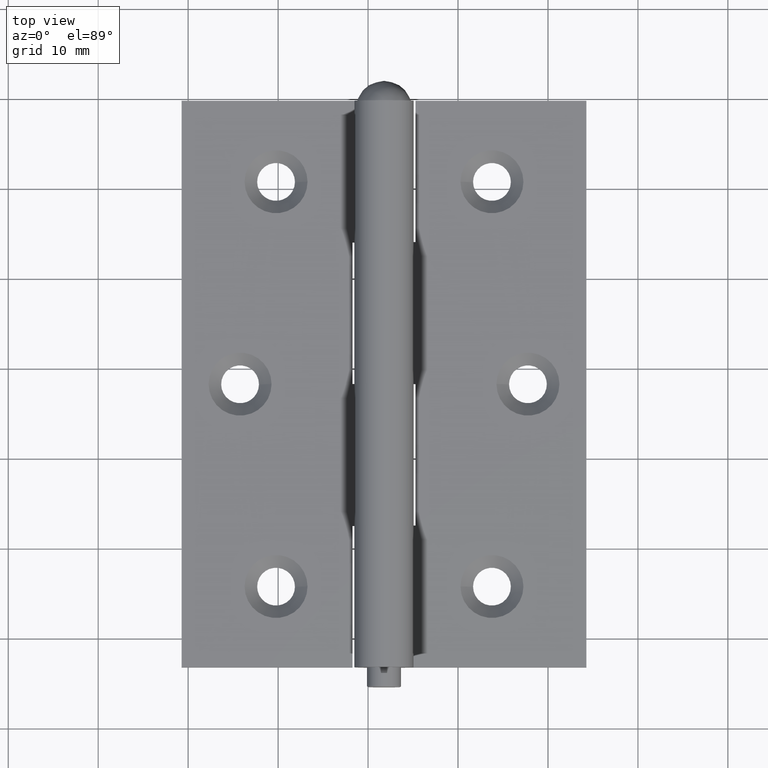
[diagram: clean part render]
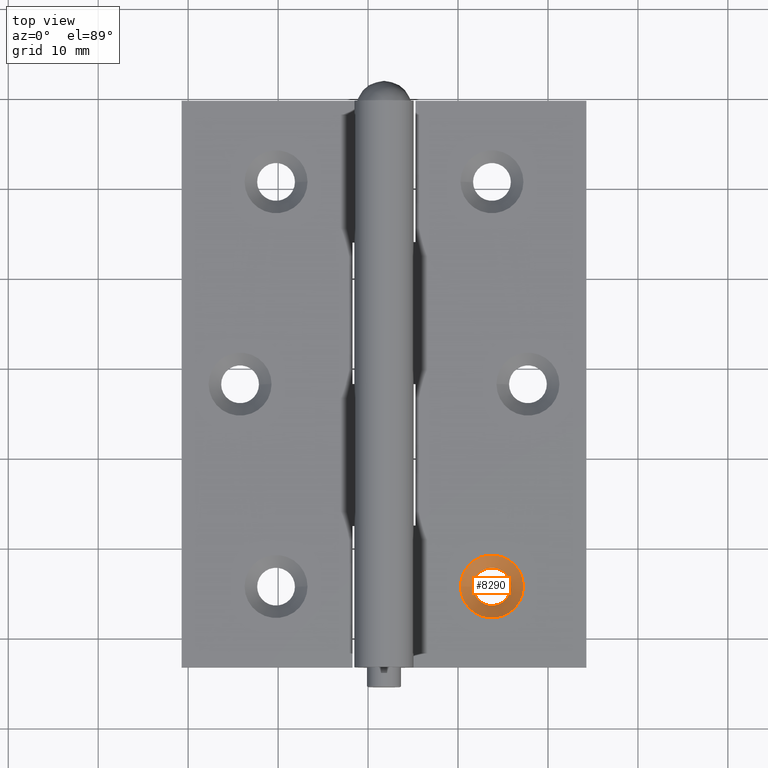
[diagram: same view with one face highlighted and labeled with its STEP entity id]
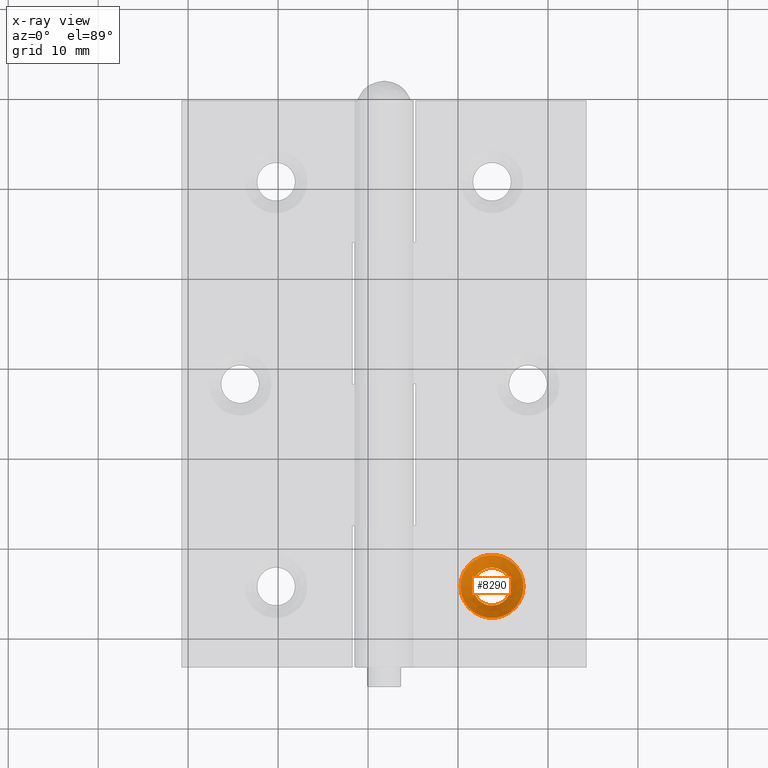
[diagram: x-ray of the same camera — body ghosted, the highlighted face saturated]
A machine part, top view. The second image highlights one B-rep face of the part: STEP entity #8290.
The next image is the same camera in x-ray: the body ghosted, the highlighted face saturated — about 0% of this face is hidden behind the body in this view.
In plain terms, the highlighted conical surface has half-angle 45 deg.
Its self-contained STEP definition (entity closure, byte-faithful):
#32 = DIRECTION ( 'NONE',  ( -1.000000000000000000, 0.000000000000000000, 3.097720492815717798E-17 ) ) ;
#382 = CARTESIAN_POINT ( 'NONE',  ( -12.00000000000000355, 22.50000000000000000, -1.899999999999999689 ) ) ;
#417 = DIRECTION ( 'NONE',  ( 0.000000000000000000, 0.000000000000000000, 1.000000000000000000 ) ) ;
#520 = DIRECTION ( 'NONE',  ( 1.000000000000000000, 0.000000000000000000, 0.000000000000000000 ) ) ;
#1975 = CARTESIAN_POINT ( 'NONE',  ( -12.00000000000000355, 22.50000000000000000, -1.900000000000002576 ) ) ;
#3525 = EDGE_CURVE ( 'NONE', #11333, #11333, #7274, .T. ) ;
#3886 = ORIENTED_EDGE ( 'NONE', *, *, #9597, .F. ) ;
#4391 = CARTESIAN_POINT ( 'NONE',  ( -12.00000000000000355, 22.50000000000000000, -0.5000000000000002220 ) ) ;
#4740 = EDGE_LOOP ( 'NONE', ( #3886 ) ) ;
#5820 = EDGE_LOOP ( 'NONE', ( #9866 ) ) ;
#6754 = CARTESIAN_POINT ( 'NONE',  ( -9.900000000000002132, 22.50000000000000000, -1.899999999999999689 ) ) ;
#7149 = AXIS2_PLACEMENT_3D ( 'NONE', #382, #417, #9080 ) ;
#7274 = CIRCLE ( 'NONE', #10350, 3.500000000000010214 ) ;
#7895 = VERTEX_POINT ( 'NONE', #6754 ) ;
#8037 = CONICAL_SURFACE ( 'NONE', #10148, 2.100000000000000977, 0.7853981633974507215 ) ;
#8159 = FACE_BOUND ( 'NONE', #4740, .T. ) ;
#8290 = ADVANCED_FACE ( 'NONE', ( #11054, #8159 ), #8037, .F. ) ;
#9080 = DIRECTION ( 'NONE',  ( 1.000000000000000000, 0.000000000000000000, 0.000000000000000000 ) ) ;
#9597 = EDGE_CURVE ( 'NONE', #7895, #7895, #11178, .T. ) ;
#9866 = ORIENTED_EDGE ( 'NONE', *, *, #3525, .F. ) ;
#9978 = DIRECTION ( 'NONE',  ( 0.000000000000000000, 0.000000000000000000, 1.000000000000000000 ) ) ;
#10148 = AXIS2_PLACEMENT_3D ( 'NONE', #1975, #9978, #520 ) ;
#10350 = AXIS2_PLACEMENT_3D ( 'NONE', #4391, #10554, #32 ) ;
#10554 = DIRECTION ( 'NONE',  ( -2.264254790790743879E-17, 0.000000000000000000, -1.000000000000000000 ) ) ;
#11054 = FACE_OUTER_BOUND ( 'NONE', #5820, .T. ) ;
#11178 = CIRCLE ( 'NONE', #7149, 2.100000000000000977 ) ;
#11270 = CARTESIAN_POINT ( 'NONE',  ( -15.50000000000001421, 22.50000000000000000, -0.5000000000000001110 ) ) ;
#11333 = VERTEX_POINT ( 'NONE', #11270 ) ;